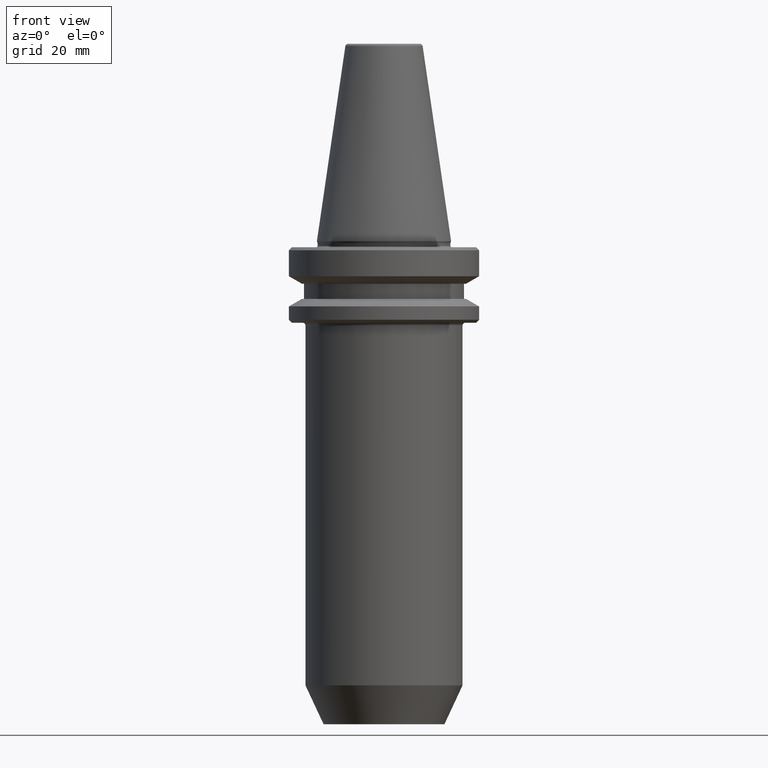
[diagram: clean part render]
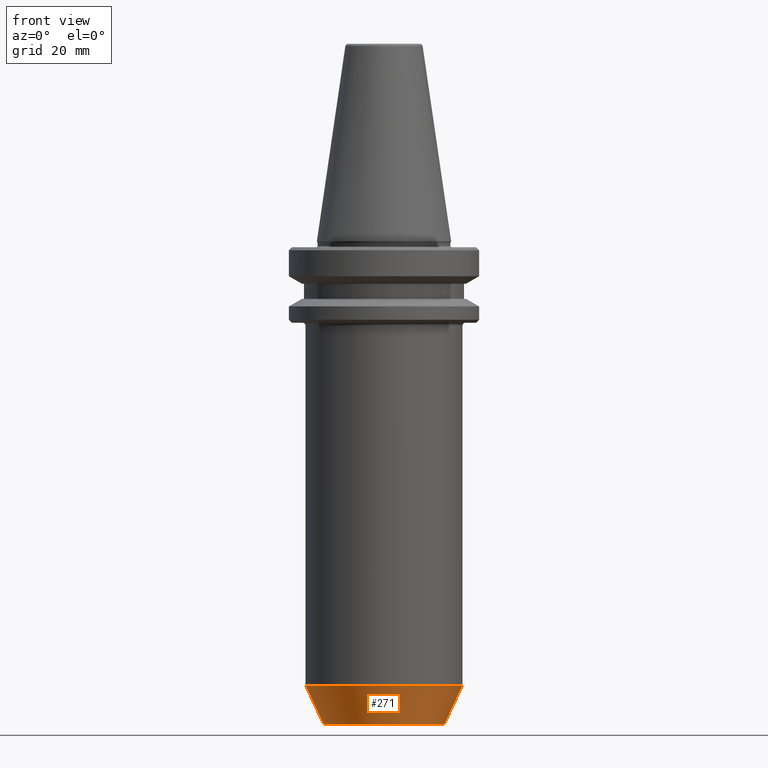
[diagram: same view with one face highlighted and labeled with its STEP entity id]
A machine part, front view. The second image highlights one B-rep face of the part: STEP entity #271.
In plain terms, the highlighted conical surface has half-angle 25 deg.
Its self-contained STEP definition (entity closure, byte-faithful):
#4 = CARTESIAN_POINT ( 'NONE',  ( -20.00000000000000000, 2.816687638038912400E-015, -159.3112867883404000 ) ) ;
#34 = EDGE_CURVE ( 'NONE', #1048, #466, #940, .T. ) ;
#144 = CARTESIAN_POINT ( 'NONE',  ( 0.0000000000000000000, 0.0000000000000000000, -159.3112867883404000 ) ) ;
#162 = DIRECTION ( 'NONE',  ( -0.0000000000000000000, -0.0000000000000000000, 1.000000000000000000 ) ) ;
#188 = DIRECTION ( 'NONE',  ( 0.4226182617406928400, 0.0000000000000000000, 0.9063077870366530500 ) ) ;
#214 = LINE ( 'NONE', #596, #423 ) ;
#227 = CARTESIAN_POINT ( 'NONE',  ( 20.00000000000000000, 0.0000000000000000000, -159.3112867883404000 ) ) ;
#244 = DIRECTION ( 'NONE',  ( 1.000000000000000000, 0.0000000000000000000, 0.0000000000000000000 ) ) ;
#255 = VECTOR ( 'NONE', #188, 1000.000000000000000 ) ;
#270 = CARTESIAN_POINT ( 'NONE',  ( 26.00000000000000000, 0.0000000000000000000, -146.4442452652828000 ) ) ;
#271 = ADVANCED_FACE ( 'NONE', ( #829 ), #816, .T. ) ;
#305 = AXIS2_PLACEMENT_3D ( 'NONE', #860, #768, #433 ) ;
#352 = CARTESIAN_POINT ( 'NONE',  ( 0.0000000000000000000, 0.0000000000000000000, -146.4442452652828000 ) ) ;
#356 = DIRECTION ( 'NONE',  ( 1.000000000000000000, 0.0000000000000000000, 0.0000000000000000000 ) ) ;
#359 = LINE ( 'NONE', #620, #255 ) ;
#369 = AXIS2_PLACEMENT_3D ( 'NONE', #144, #744, #244 ) ;
#421 = CIRCLE ( 'NONE', #497, 26.00000000000000000 ) ;
#423 = VECTOR ( 'NONE', #1038, 1000.000000000000000 ) ;
#429 = EDGE_CURVE ( 'NONE', #1048, #912, #214, .T. ) ;
#433 = DIRECTION ( 'NONE',  ( 1.000000000000000000, 0.0000000000000000000, 0.0000000000000000000 ) ) ;
#435 = EDGE_CURVE ( 'NONE', #912, #636, #421, .T. ) ;
#466 = VERTEX_POINT ( 'NONE', #227 ) ;
#497 = AXIS2_PLACEMENT_3D ( 'NONE', #352, #162, #356 ) ;
#528 = ORIENTED_EDGE ( 'NONE', *, *, #429, .F. ) ;
#547 = ORIENTED_EDGE ( 'NONE', *, *, #435, .F. ) ;
#596 = CARTESIAN_POINT ( 'NONE',  ( -20.00000000000000000, 2.449293598294706500E-015, -159.3112867883404000 ) ) ;
#608 = EDGE_CURVE ( 'NONE', #466, #636, #359, .T. ) ;
#615 = ORIENTED_EDGE ( 'NONE', *, *, #608, .T. ) ;
#620 = CARTESIAN_POINT ( 'NONE',  ( 20.00000000000000000, 0.0000000000000000000, -159.3112867883404000 ) ) ;
#636 = VERTEX_POINT ( 'NONE', #270 ) ;
#717 = ORIENTED_EDGE ( 'NONE', *, *, #34, .T. ) ;
#727 = EDGE_LOOP ( 'NONE', ( #528, #717, #615, #547 ) ) ;
#744 = DIRECTION ( 'NONE',  ( -0.0000000000000000000, -0.0000000000000000000, 1.000000000000000000 ) ) ;
#768 = DIRECTION ( 'NONE',  ( -0.0000000000000000000, -0.0000000000000000000, 1.000000000000000000 ) ) ;
#816 = CONICAL_SURFACE ( 'NONE', #305, 20.00000000000000000, 0.4363323129985751100 ) ;
#829 = FACE_OUTER_BOUND ( 'NONE', #727, .T. ) ;
#860 = CARTESIAN_POINT ( 'NONE',  ( 0.0000000000000000000, 0.0000000000000000000, -159.3112867883404000 ) ) ;
#912 = VERTEX_POINT ( 'NONE', #1046 ) ;
#940 = CIRCLE ( 'NONE', #369, 20.00000000000000000 ) ;
#1038 = DIRECTION ( 'NONE',  ( -0.4226182617406928400, 5.175581015019578000E-017, 0.9063077870366530500 ) ) ;
#1046 = CARTESIAN_POINT ( 'NONE',  ( -26.00000000000000000, 3.184081677783118200E-015, -146.4442452652828000 ) ) ;
#1048 = VERTEX_POINT ( 'NONE', #4 ) ;